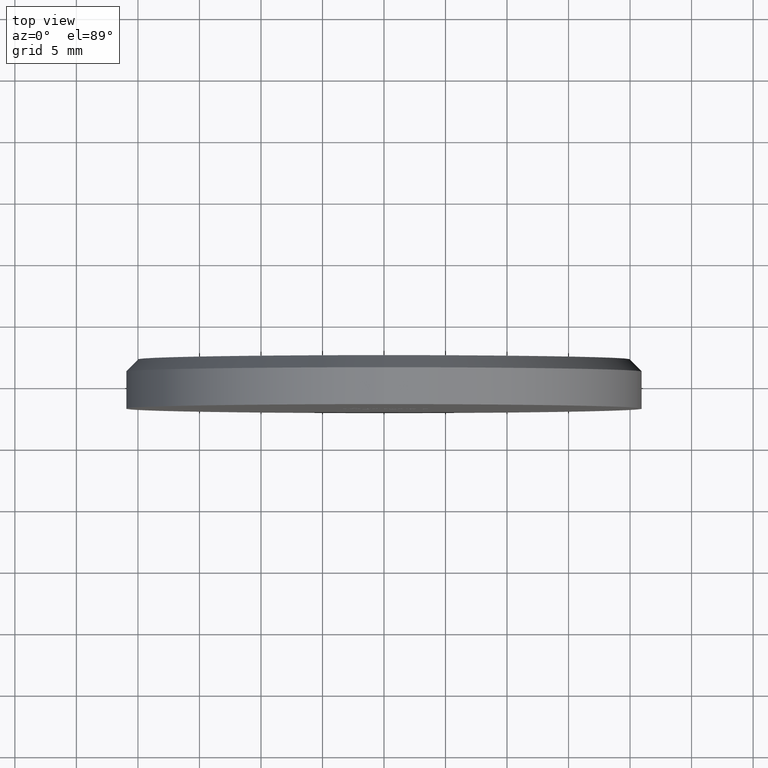
[diagram: clean part render]
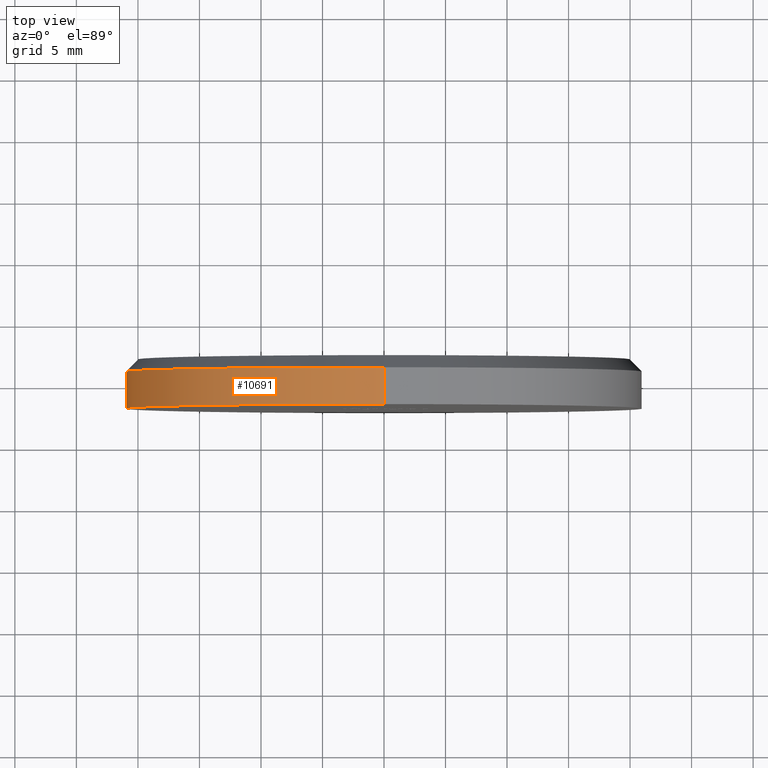
[diagram: same view with one face highlighted and labeled with its STEP entity id]
A machine part, top view. The second image highlights one B-rep face of the part: STEP entity #10691.
In plain terms, the highlighted cylindrical surface (partial cylindrical patch) has radius 21 mm, axis along (-0, -1, -0).
Its self-contained STEP definition (entity closure, byte-faithful):
#251 = VECTOR ( 'NONE', #519, 1000.000000000000000 ) ;
#431 = CARTESIAN_POINT ( 'NONE',  ( 0.000000000000000000, -2.000000000000000000, 0.000000000000000000 ) ) ;
#519 = DIRECTION ( 'NONE',  ( -0.000000000000000000, -1.000000000000000000, -0.000000000000000000 ) ) ;
#786 = CARTESIAN_POINT ( 'NONE',  ( 0.000000000000000000, 1.000000000000002665, 0.000000000000000000 ) ) ;
#1212 = AXIS2_PLACEMENT_3D ( 'NONE', #431, #3826, #13821 ) ;
#1412 = VERTEX_POINT ( 'NONE', #3821 ) ;
#1781 = VERTEX_POINT ( 'NONE', #2270 ) ;
#2270 = CARTESIAN_POINT ( 'NONE',  ( 0.000000000000000000, 1.000000000000002665, -21.00000000000000000 ) ) ;
#2917 = EDGE_CURVE ( 'NONE', #1412, #7501, #14354, .T. ) ;
#3442 = ORIENTED_EDGE ( 'NONE', *, *, #9339, .T. ) ;
#3821 = CARTESIAN_POINT ( 'NONE',  ( 2.571758278209441661E-15, 1.000000000000002665, 21.00000000000000000 ) ) ;
#3826 = DIRECTION ( 'NONE',  ( 0.000000000000000000, 1.000000000000000000, 0.000000000000000000 ) ) ;
#4103 = CARTESIAN_POINT ( 'NONE',  ( 2.571758278209441661E-15, -2.000000000000000000, 21.00000000000000000 ) ) ;
#4109 = CIRCLE ( 'NONE', #1212, 21.00000000000000000 ) ;
#4130 = EDGE_LOOP ( 'NONE', ( #7277, #3442, #9037, #11266 ) ) ;
#4907 = VERTEX_POINT ( 'NONE', #9379 ) ;
#5767 = CARTESIAN_POINT ( 'NONE',  ( 2.571758278209441661E-15, 2.000000000000000000, 21.00000000000000000 ) ) ;
#6525 = DIRECTION ( 'NONE',  ( -0.000000000000000000, -1.000000000000000000, -0.000000000000000000 ) ) ;
#7277 = ORIENTED_EDGE ( 'NONE', *, *, #2917, .F. ) ;
#7406 = VECTOR ( 'NONE', #10032, 1000.000000000000000 ) ;
#7501 = VERTEX_POINT ( 'NONE', #4103 ) ;
#7524 = DIRECTION ( 'NONE',  ( 0.000000000000000000, 0.000000000000000000, 1.000000000000000000 ) ) ;
#8982 = CYLINDRICAL_SURFACE ( 'NONE', #14409, 21.00000000000000000 ) ;
#9037 = ORIENTED_EDGE ( 'NONE', *, *, #13107, .T. ) ;
#9339 = EDGE_CURVE ( 'NONE', #1412, #1781, #12966, .T. ) ;
#9379 = CARTESIAN_POINT ( 'NONE',  ( 0.000000000000000000, -2.000000000000000000, -21.00000000000000000 ) ) ;
#9967 = CARTESIAN_POINT ( 'NONE',  ( 0.000000000000000000, 2.000000000000000000, 0.000000000000000000 ) ) ;
#10032 = DIRECTION ( 'NONE',  ( -0.000000000000000000, -1.000000000000000000, -0.000000000000000000 ) ) ;
#10691 = ADVANCED_FACE ( 'NONE', ( #13483 ), #8982, .T. ) ;
#11060 = EDGE_CURVE ( 'NONE', #4907, #7501, #4109, .T. ) ;
#11266 = ORIENTED_EDGE ( 'NONE', *, *, #11060, .T. ) ;
#12680 = CARTESIAN_POINT ( 'NONE',  ( 0.000000000000000000, 2.000000000000000000, -21.00000000000000000 ) ) ;
#12947 = DIRECTION ( 'NONE',  ( 0.000000000000000000, -1.000000000000000000, 0.000000000000000000 ) ) ;
#12966 = CIRCLE ( 'NONE', #13087, 21.00000000000000000 ) ;
#13087 = AXIS2_PLACEMENT_3D ( 'NONE', #786, #12947, #7524 ) ;
#13107 = EDGE_CURVE ( 'NONE', #1781, #4907, #13974, .T. ) ;
#13483 = FACE_OUTER_BOUND ( 'NONE', #4130, .T. ) ;
#13523 = DIRECTION ( 'NONE',  ( 0.000000000000000000, 0.000000000000000000, -1.000000000000000000 ) ) ;
#13821 = DIRECTION ( 'NONE',  ( 0.000000000000000000, 0.000000000000000000, 1.000000000000000000 ) ) ;
#13974 = LINE ( 'NONE', #12680, #251 ) ;
#14354 = LINE ( 'NONE', #5767, #7406 ) ;
#14409 = AXIS2_PLACEMENT_3D ( 'NONE', #9967, #6525, #13523 ) ;